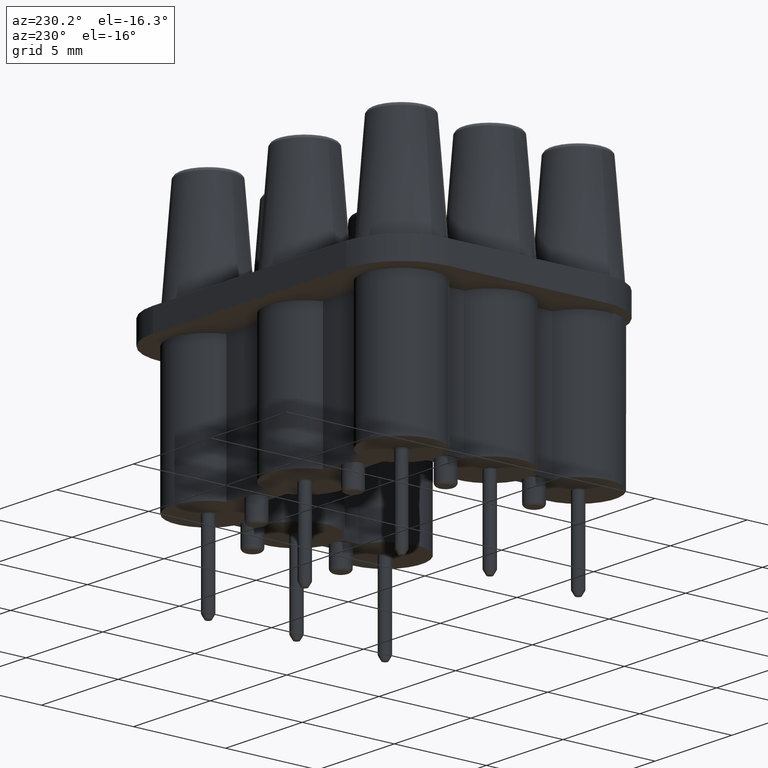
[diagram: clean part render]
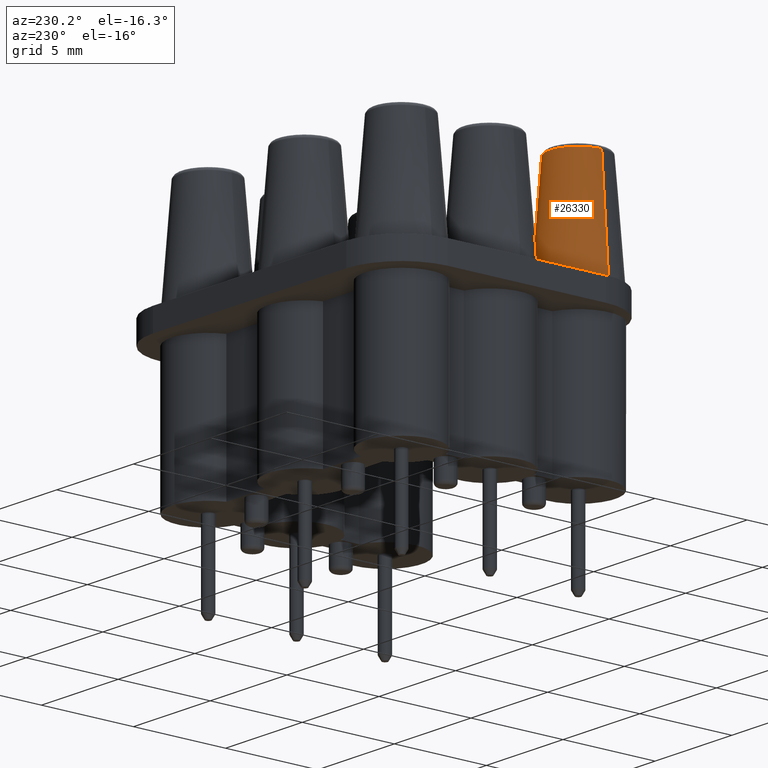
[diagram: same view with one face highlighted and labeled with its STEP entity id]
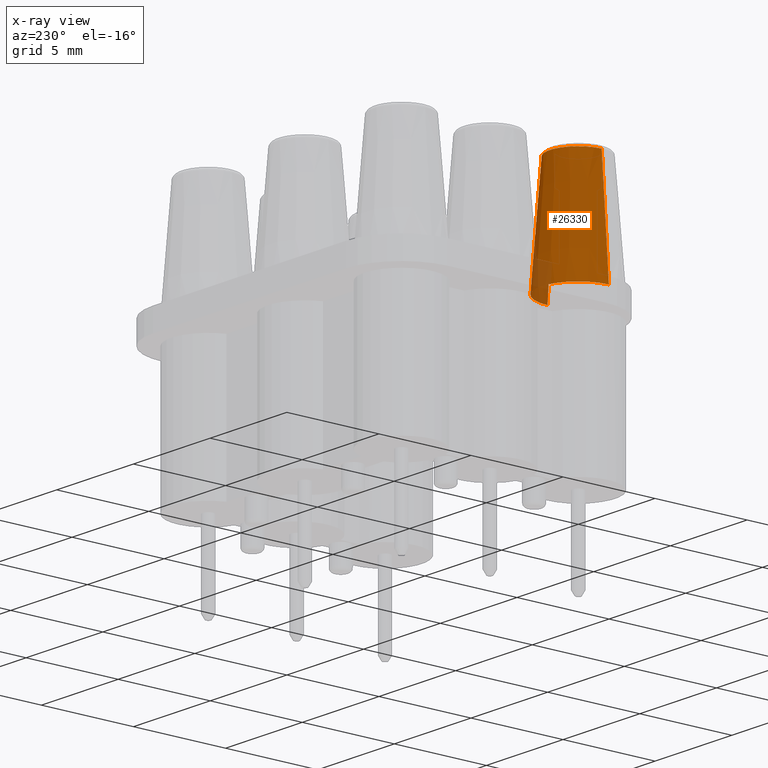
[diagram: x-ray of the same camera — body ghosted, the highlighted face saturated]
A machine part, auxiliary view. The second image highlights one B-rep face of the part: STEP entity #26330.
The next image is the same camera in x-ray: the body ghosted, the highlighted face saturated — about 8% of this face is hidden behind the body in this view.
In plain terms, the highlighted conical surface has half-angle 4.46 deg.
Its self-contained STEP definition (entity closure, byte-faithful):
#9030=CARTESIAN_POINT('',(50.3129610115911,49.,0.));
#9040=DIRECTION('',(0.,0.,1.));
#9050=DIRECTION('',(-1.,0.,0.));
#9060=AXIS2_PLACEMENT_3D('',#9030,#9040,#9050);
#9070=CIRCLE('',#9060,2.);
#9100=CARTESIAN_POINT('',(52.3129610115911,49.,0.));
#9110=VERTEX_POINT('',#9100);
#10240=CARTESIAN_POINT('',(48.3129610115911,49.,0.));
#10250=VERTEX_POINT('',#10240);
#10280=EDGE_CURVE('',#9110,#10250,#9070,.T.);
#26020=CARTESIAN_POINT('',(50.3129610115911,49.,0.));
#26030=DIRECTION('',(0.,0.,1.));
#26040=DIRECTION('',(1.,0.,0.));
#26050=AXIS2_PLACEMENT_3D('',#26020,#26030,#26040);
#26060=CONICAL_SURFACE('',#26050,2.,0.0778337714450257);
#26070=CARTESIAN_POINT('',(52.3129610115911,49.,0.));
#26080=DIRECTION('',(0.0777552078364802,0.,0.996972480891176));
#26090=VECTOR('',#26080,25.7217497792047);
#26100=LINE('',#26070,#26090);
#26110=CARTESIAN_POINT('',(51.8438001967711,49.,-6.01555104156729));
#26120=VERTEX_POINT('',#26110);
#26130=EDGE_CURVE('',#26120,#9110,#26100,.T.);
#26140=ORIENTED_EDGE('',*,*,#26130,.F.);
#26150=ORIENTED_EDGE('',*,*,#10280,.F.);
#26160=CARTESIAN_POINT('',(48.3129610115911,49.,0.));
#26170=DIRECTION('',(-0.0777552078364802,0.,0.996972480891176));
#26180=VECTOR('',#26170,25.7217497792047);
#26190=LINE('',#26160,#26180);
#26200=CARTESIAN_POINT('',(48.7821218264111,49.,-6.01555104156729));
#26210=VERTEX_POINT('',#26200);
#26220=EDGE_CURVE('',#26210,#10250,#26190,.T.);
#26230=ORIENTED_EDGE('',*,*,#26220,.T.);
#26240=CARTESIAN_POINT('',(50.3129610115911,49.,-6.01555104156729));
#26250=DIRECTION('',(0.,0.,1.));
#26260=DIRECTION('',(-1.,0.,0.));
#26270=AXIS2_PLACEMENT_3D('',#26240,#26250,#26260);
#26280=CIRCLE('',#26270,1.53083918518);
#26290=EDGE_CURVE('',#26120,#26210,#26280,.T.);
#26300=ORIENTED_EDGE('',*,*,#26290,.T.);
#26310=EDGE_LOOP('',(#26300,#26230,#26150,#26140));
#26320=FACE_OUTER_BOUND('',#26310,.T.);
#26330=ADVANCED_FACE('',(#26320),#26060,.T.);